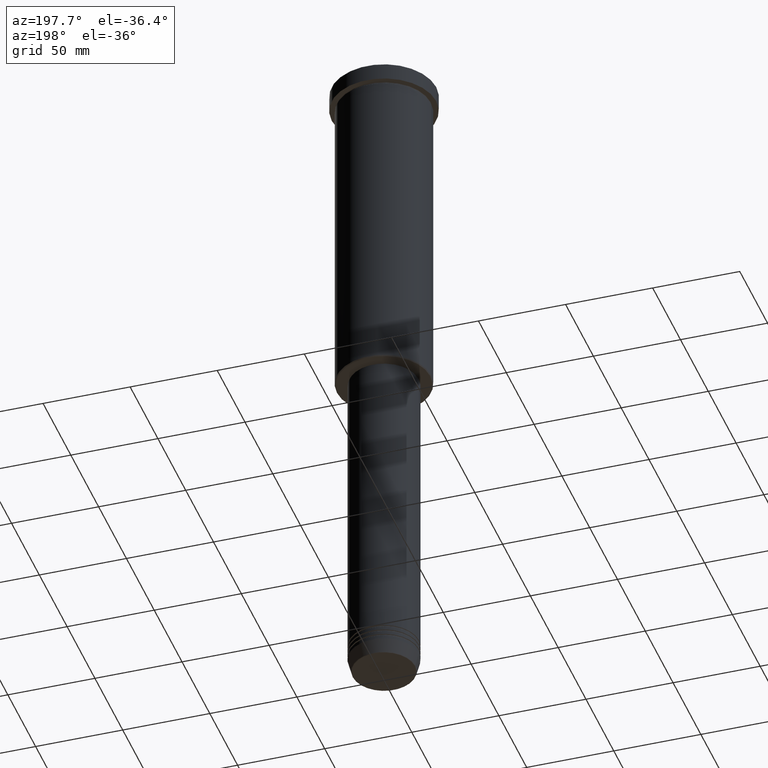
[diagram: clean part render]
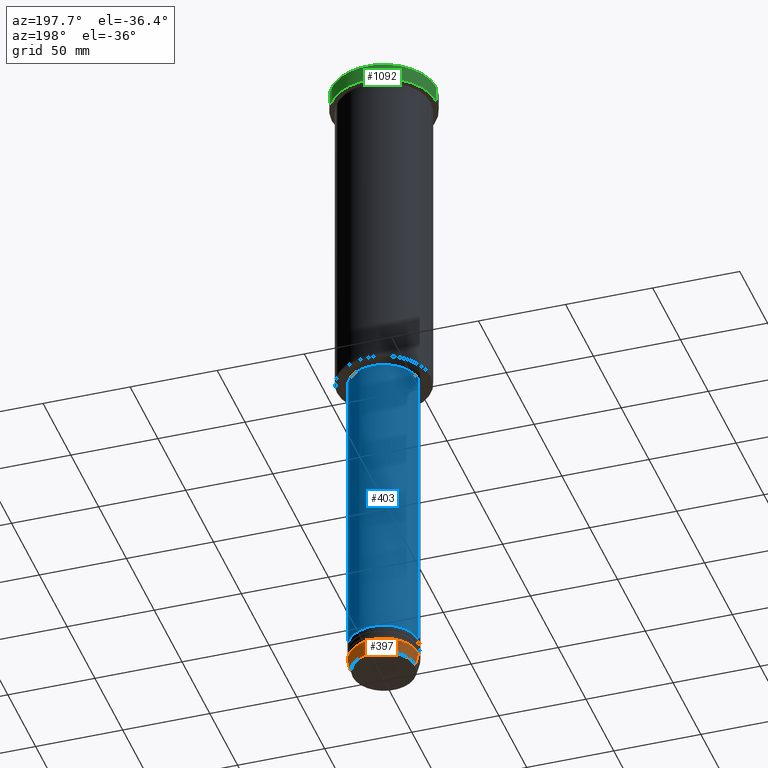
[diagram: same view with three faces highlighted in distinct colors, each labeled with its STEP entity id]
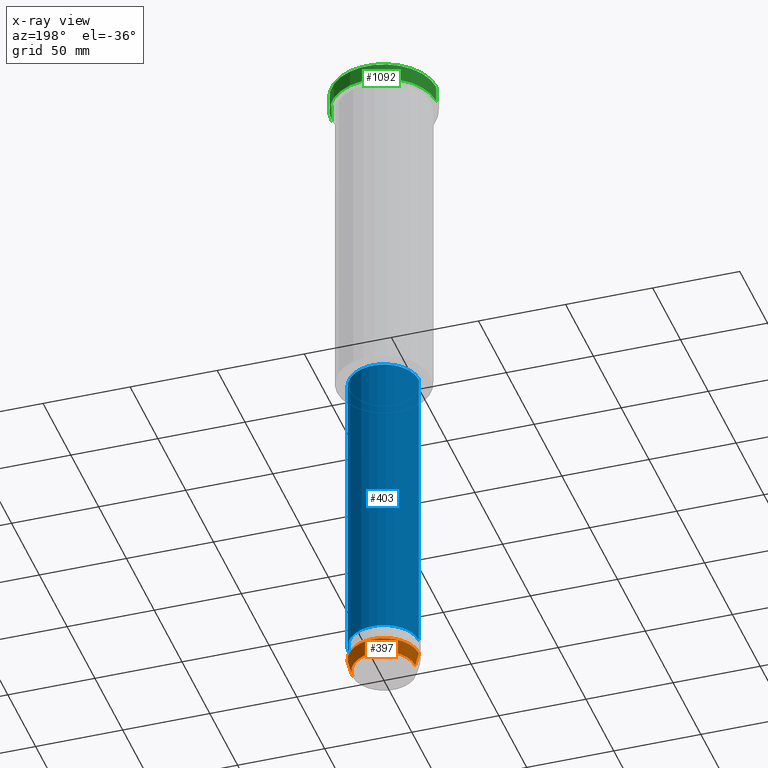
[diagram: x-ray of the same camera — body ghosted, the three highlighted faces saturated]
A machine part, auxiliary view with three faces highlighted in distinct colors.
The next image is the same camera in x-ray (body ghosted, the three faces saturated) — at least one of them is partly hidden behind the body in this view.
Their STEP definitions:

[orange] entity #397 — the highlighted conical surface has half-angle 15 deg.
#22 = CARTESIAN_POINT ( 'NONE',  ( 20.00000000000000000, 0.000000000000000000, -383.0000000000000000 ) ) ;
#25 = EDGE_CURVE ( 'NONE', #139, #166, #461, .T. ) ;
#44 = DIRECTION ( 'NONE',  ( 0.2588190451025212391, 0.000000000000000000, 0.9659258262890680902 ) ) ;
#81 = DIRECTION ( 'NONE',  ( 1.000000000000000000, 0.000000000000000000, 0.000000000000000000 ) ) ;
#101 = EDGE_CURVE ( 'NONE', #166, #320, #785, .T. ) ;
#139 = VERTEX_POINT ( 'NONE', #180 ) ;
#166 = VERTEX_POINT ( 'NONE', #734 ) ;
#180 = CARTESIAN_POINT ( 'NONE',  ( 17.95570587970607690, 0.000000000000000000, -390.6294095225512706 ) ) ;
#185 = CIRCLE ( 'NONE', #561, 20.00000000000000000 ) ;
#223 = CARTESIAN_POINT ( 'NONE',  ( 0.000000000000000000, 0.000000000000000000, -383.0000000000000000 ) ) ;
#229 = VECTOR ( 'NONE', #44, 1000.000000000000114 ) ;
#237 = CARTESIAN_POINT ( 'NONE',  ( -20.00000000000000000, 2.449293598294706513E-15, -383.0000000000000000 ) ) ;
#261 = DIRECTION ( 'NONE',  ( -0.2588190451025212391, 3.169619151431771721E-17, 0.9659258262890680902 ) ) ;
#320 = VERTEX_POINT ( 'NONE', #237 ) ;
#337 = ORIENTED_EDGE ( 'NONE', *, *, #344, .F. ) ;
#344 = EDGE_CURVE ( 'NONE', #139, #506, #568, .T. ) ;
#354 = CARTESIAN_POINT ( 'NONE',  ( -20.00000000000000000, 2.449293598294706513E-15, -383.0000000000000000 ) ) ;
#397 = ADVANCED_FACE ( 'NONE', ( #1116 ), #825, .T. ) ;
#442 = EDGE_LOOP ( 'NONE', ( #851, #546, #859, #337 ) ) ;
#461 = CIRCLE ( 'NONE', #543, 17.95570587970607690 ) ;
#474 = AXIS2_PLACEMENT_3D ( 'NONE', #223, #942, #566 ) ;
#506 = VERTEX_POINT ( 'NONE', #22 ) ;
#543 = AXIS2_PLACEMENT_3D ( 'NONE', #593, #1038, #1031 ) ;
#546 = ORIENTED_EDGE ( 'NONE', *, *, #101, .T. ) ;
#561 = AXIS2_PLACEMENT_3D ( 'NONE', #1165, #886, #81 ) ;
#566 = DIRECTION ( 'NONE',  ( 1.000000000000000000, 0.000000000000000000, 0.000000000000000000 ) ) ;
#568 = LINE ( 'NONE', #1123, #229 ) ;
#593 = CARTESIAN_POINT ( 'NONE',  ( 0.000000000000000000, 0.000000000000000000, -390.6294095225512706 ) ) ;
#648 = EDGE_CURVE ( 'NONE', #506, #320, #185, .T. ) ;
#734 = CARTESIAN_POINT ( 'NONE',  ( -17.95570587970607690, 2.324116685748021371E-15, -390.6294095225512706 ) ) ;
#785 = LINE ( 'NONE', #354, #1046 ) ;
#825 = CONICAL_SURFACE ( 'NONE', #474, 20.00000000000000000, 0.2617993877991499629 ) ;
#851 = ORIENTED_EDGE ( 'NONE', *, *, #25, .T. ) ;
#859 = ORIENTED_EDGE ( 'NONE', *, *, #648, .F. ) ;
#886 = DIRECTION ( 'NONE',  ( -0.000000000000000000, -0.000000000000000000, 1.000000000000000000 ) ) ;
#942 = DIRECTION ( 'NONE',  ( -0.000000000000000000, -0.000000000000000000, 1.000000000000000000 ) ) ;
#1031 = DIRECTION ( 'NONE',  ( 1.000000000000000000, 0.000000000000000000, 0.000000000000000000 ) ) ;
#1038 = DIRECTION ( 'NONE',  ( -0.000000000000000000, -0.000000000000000000, 1.000000000000000000 ) ) ;
#1046 = VECTOR ( 'NONE', #261, 1000.000000000000114 ) ;
#1116 = FACE_OUTER_BOUND ( 'NONE', #442, .T. ) ;
#1123 = CARTESIAN_POINT ( 'NONE',  ( 20.00000000000000000, 0.000000000000000000, -383.0000000000000000 ) ) ;
#1165 = CARTESIAN_POINT ( 'NONE',  ( 0.000000000000000000, 0.000000000000000000, -383.0000000000000000 ) ) ;

[blue] entity #403 — the highlighted cylindrical surface (edge-blend (fillet) strip) has radius 20 mm, axis along (-0, -0, 1).
#8 = LINE ( 'NONE', #653, #971 ) ;
#19 = DIRECTION ( 'NONE',  ( -0.000000000000000000, -0.000000000000000000, 1.000000000000000000 ) ) ;
#24 = DIRECTION ( 'NONE',  ( -0.000000000000000000, -0.000000000000000000, 1.000000000000000000 ) ) ;
#130 = VECTOR ( 'NONE', #191, 1000.000000000000000 ) ;
#147 = VERTEX_POINT ( 'NONE', #468 ) ;
#154 = VERTEX_POINT ( 'NONE', #822 ) ;
#191 = DIRECTION ( 'NONE',  ( -0.000000000000000000, -0.000000000000000000, 1.000000000000000000 ) ) ;
#257 = AXIS2_PLACEMENT_3D ( 'NONE', #550, #24, #721 ) ;
#298 = DIRECTION ( 'NONE',  ( 1.000000000000000000, 0.000000000000000000, 0.000000000000000000 ) ) ;
#356 = ORIENTED_EDGE ( 'NONE', *, *, #1086, .F. ) ;
#357 = LINE ( 'NONE', #962, #130 ) ;
#389 = DIRECTION ( 'NONE',  ( -0.000000000000000000, -0.000000000000000000, 1.000000000000000000 ) ) ;
#403 = ADVANCED_FACE ( 'NONE', ( #573 ), #1009, .T. ) ;
#468 = CARTESIAN_POINT ( 'NONE',  ( 20.00000000000000000, 0.000000000000000000, -196.9999999999998579 ) ) ;
#502 = VERTEX_POINT ( 'NONE', #885 ) ;
#550 = CARTESIAN_POINT ( 'NONE',  ( 0.000000000000000000, 0.000000000000000000, -196.9999999999998579 ) ) ;
#573 = FACE_OUTER_BOUND ( 'NONE', #868, .T. ) ;
#618 = DIRECTION ( 'NONE',  ( 1.000000000000000000, 0.000000000000000000, 0.000000000000000000 ) ) ;
#653 = CARTESIAN_POINT ( 'NONE',  ( 20.00000000000000000, 0.000000000000000000, 0.000000000000000000 ) ) ;
#682 = EDGE_CURVE ( 'NONE', #743, #502, #357, .T. ) ;
#693 = DIRECTION ( 'NONE',  ( -0.000000000000000000, -0.000000000000000000, 1.000000000000000000 ) ) ;
#697 = ORIENTED_EDGE ( 'NONE', *, *, #682, .T. ) ;
#721 = DIRECTION ( 'NONE',  ( 1.000000000000000000, 0.000000000000000000, 0.000000000000000000 ) ) ;
#730 = ORIENTED_EDGE ( 'NONE', *, *, #733, .F. ) ;
#733 = EDGE_CURVE ( 'NONE', #154, #147, #8, .T. ) ;
#743 = VERTEX_POINT ( 'NONE', #778 ) ;
#763 = EDGE_CURVE ( 'NONE', #154, #743, #912, .T. ) ;
#774 = CARTESIAN_POINT ( 'NONE',  ( 0.000000000000000000, 0.000000000000000000, -374.0000000000000000 ) ) ;
#778 = CARTESIAN_POINT ( 'NONE',  ( -20.00000000000000000, 2.449293598294706513E-15, -374.0000000000000000 ) ) ;
#822 = CARTESIAN_POINT ( 'NONE',  ( 20.00000000000000000, 0.000000000000000000, -374.0000000000000000 ) ) ;
#862 = AXIS2_PLACEMENT_3D ( 'NONE', #1126, #19, #298 ) ;
#868 = EDGE_LOOP ( 'NONE', ( #1077, #697, #356, #730 ) ) ;
#885 = CARTESIAN_POINT ( 'NONE',  ( -20.00000000000000000, 2.449293598294706513E-15, -196.9999999999998579 ) ) ;
#912 = CIRCLE ( 'NONE', #1007, 20.00000000000000000 ) ;
#962 = CARTESIAN_POINT ( 'NONE',  ( -20.00000000000000000, 2.449293598294706513E-15, 0.000000000000000000 ) ) ;
#971 = VECTOR ( 'NONE', #389, 1000.000000000000000 ) ;
#1007 = AXIS2_PLACEMENT_3D ( 'NONE', #774, #693, #618 ) ;
#1009 = CYLINDRICAL_SURFACE ( 'NONE', #862, 20.00000000000000000 ) ;
#1077 = ORIENTED_EDGE ( 'NONE', *, *, #763, .T. ) ;
#1086 = EDGE_CURVE ( 'NONE', #147, #502, #1164, .T. ) ;
#1126 = CARTESIAN_POINT ( 'NONE',  ( 0.000000000000000000, 0.000000000000000000, 0.000000000000000000 ) ) ;
#1164 = CIRCLE ( 'NONE', #257, 20.00000000000000000 ) ;

[green] entity #1092 — the highlighted cylindrical surface (partial cylindrical patch) has radius 30 mm, axis along (-0, -0, 1).
#6 = FACE_OUTER_BOUND ( 'NONE', #1120, .T. ) ;
#27 = EDGE_CURVE ( 'NONE', #1144, #680, #169, .T. ) ;
#167 = DIRECTION ( 'NONE',  ( -0.000000000000000000, -0.000000000000000000, 1.000000000000000000 ) ) ;
#169 = CIRCLE ( 'NONE', #824, 30.00000000000000000 ) ;
#175 = DIRECTION ( 'NONE',  ( 1.000000000000000000, 0.000000000000000000, 0.000000000000000000 ) ) ;
#230 = EDGE_CURVE ( 'NONE', #680, #990, #580, .T. ) ;
#281 = CARTESIAN_POINT ( 'NONE',  ( 0.000000000000000000, 0.000000000000000000, -0.5000000000000073275 ) ) ;
#282 = DIRECTION ( 'NONE',  ( -0.000000000000000000, -0.000000000000000000, 1.000000000000000000 ) ) ;
#299 = DIRECTION ( 'NONE',  ( -0.000000000000000000, -0.000000000000000000, 1.000000000000000000 ) ) ;
#379 = CARTESIAN_POINT ( 'NONE',  ( 30.00000000000000000, 0.000000000000000000, 0.000000000000000000 ) ) ;
#412 = AXIS2_PLACEMENT_3D ( 'NONE', #281, #972, #175 ) ;
#424 = CARTESIAN_POINT ( 'NONE',  ( 0.000000000000000000, 0.000000000000000000, -9.999999999999992895 ) ) ;
#431 = DIRECTION ( 'NONE',  ( -0.000000000000000000, -0.000000000000000000, 1.000000000000000000 ) ) ;
#479 = CARTESIAN_POINT ( 'NONE',  ( -30.00000000000000000, 3.673940397442059178E-15, -0.5000000000000073275 ) ) ;
#524 = ORIENTED_EDGE ( 'NONE', *, *, #27, .T. ) ;
#547 = VECTOR ( 'NONE', #167, 1000.000000000000000 ) ;
#580 = LINE ( 'NONE', #936, #602 ) ;
#602 = VECTOR ( 'NONE', #299, 1000.000000000000000 ) ;
#641 = ORIENTED_EDGE ( 'NONE', *, *, #230, .T. ) ;
#680 = VERTEX_POINT ( 'NONE', #787 ) ;
#707 = ORIENTED_EDGE ( 'NONE', *, *, #959, .T. ) ;
#735 = CYLINDRICAL_SURFACE ( 'NONE', #1180, 30.00000000000000000 ) ;
#787 = CARTESIAN_POINT ( 'NONE',  ( -30.00000000000000000, 3.673940397442059178E-15, -9.999999999999992895 ) ) ;
#811 = CIRCLE ( 'NONE', #412, 30.00000000000000000 ) ;
#824 = AXIS2_PLACEMENT_3D ( 'NONE', #424, #431, #1132 ) ;
#867 = EDGE_CURVE ( 'NONE', #1144, #1059, #1173, .T. ) ;
#896 = DIRECTION ( 'NONE',  ( 1.000000000000000000, 0.000000000000000000, 0.000000000000000000 ) ) ;
#936 = CARTESIAN_POINT ( 'NONE',  ( -30.00000000000000000, 3.673940397442059178E-15, 0.000000000000000000 ) ) ;
#959 = EDGE_CURVE ( 'NONE', #990, #1059, #811, .T. ) ;
#972 = DIRECTION ( 'NONE',  ( 0.000000000000000000, 0.000000000000000000, -1.000000000000000000 ) ) ;
#990 = VERTEX_POINT ( 'NONE', #479 ) ;
#1004 = CARTESIAN_POINT ( 'NONE',  ( 30.00000000000000000, 0.000000000000000000, -0.5000000000000073275 ) ) ;
#1049 = ORIENTED_EDGE ( 'NONE', *, *, #867, .F. ) ;
#1059 = VERTEX_POINT ( 'NONE', #1004 ) ;
#1080 = CARTESIAN_POINT ( 'NONE',  ( 0.000000000000000000, 0.000000000000000000, 0.000000000000000000 ) ) ;
#1092 = ADVANCED_FACE ( 'NONE', ( #6 ), #735, .T. ) ;
#1119 = CARTESIAN_POINT ( 'NONE',  ( 30.00000000000000000, 0.000000000000000000, -9.999999999999992895 ) ) ;
#1120 = EDGE_LOOP ( 'NONE', ( #524, #641, #707, #1049 ) ) ;
#1132 = DIRECTION ( 'NONE',  ( 1.000000000000000000, 0.000000000000000000, 0.000000000000000000 ) ) ;
#1144 = VERTEX_POINT ( 'NONE', #1119 ) ;
#1173 = LINE ( 'NONE', #379, #547 ) ;
#1180 = AXIS2_PLACEMENT_3D ( 'NONE', #1080, #282, #896 ) ;